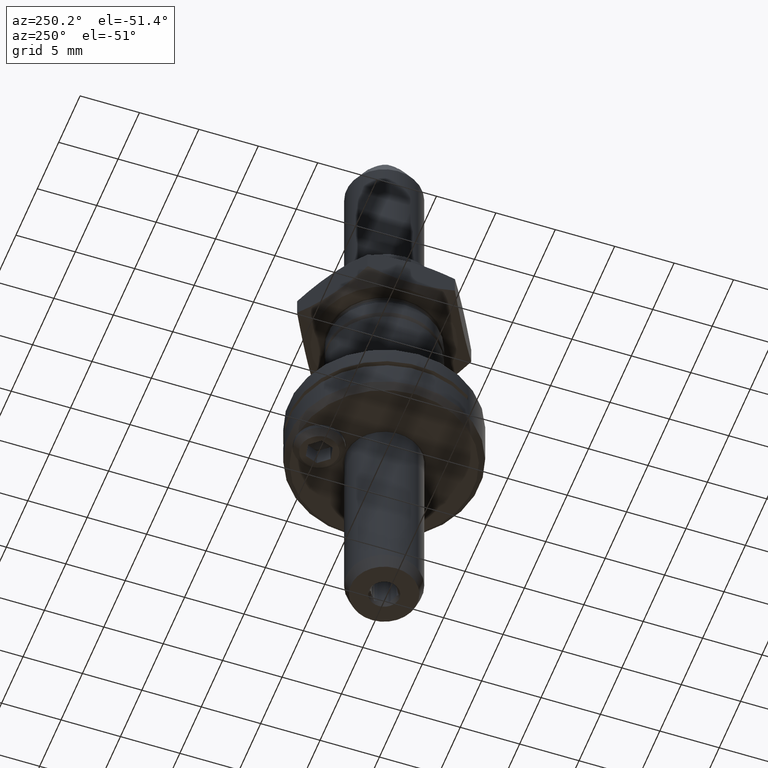
[diagram: clean part render]
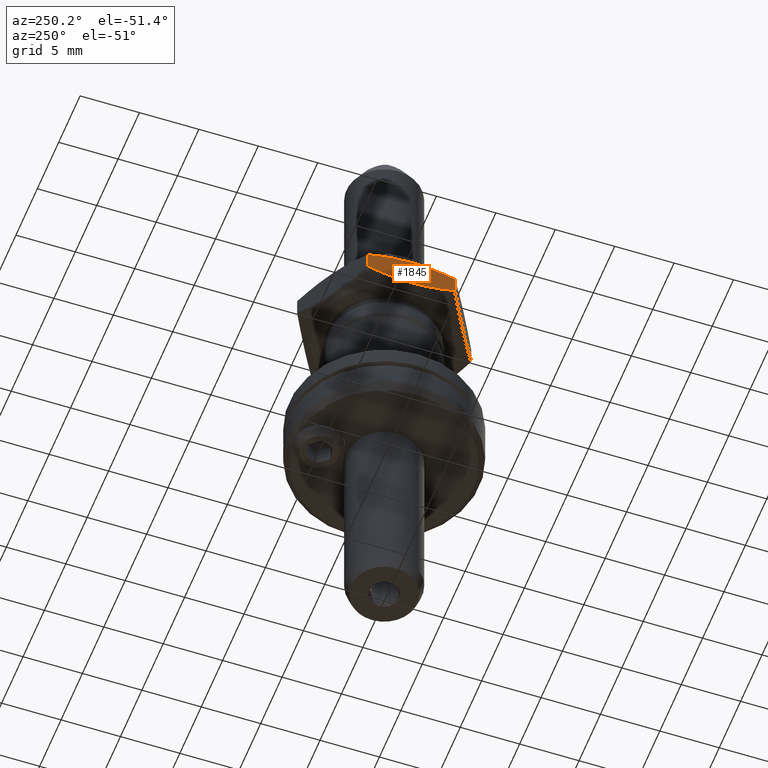
[diagram: same view with one face highlighted and labeled with its STEP entity id]
A machine part, auxiliary view. The second image highlights one B-rep face of the part: STEP entity #1845.
In plain terms, the highlighted planar face has unit normal (1, 0, 0).
Its self-contained STEP definition (entity closure, byte-faithful):
#27 = CARTESIAN_POINT ( 'NONE',  ( -6.350000000006223999, -3.666174209357553782, -19.27545306067893804 ) ) ;
#52 = ORIENTED_EDGE ( 'NONE', *, *, #1779, .F. ) ;
#82 = CARTESIAN_POINT ( 'NONE',  ( -6.349999999999999645, -3.666174209353959768, -18.41499999999999559 ) ) ;
#129 = CARTESIAN_POINT ( 'NONE',  ( -6.349999999999999645, 3.666174209353959768, -18.41499999999999559 ) ) ;
#147 = VERTEX_POINT ( 'NONE', #1875 ) ;
#197 = FACE_OUTER_BOUND ( 'NONE', #1256, .T. ) ;
#224 = CARTESIAN_POINT ( 'NONE',  ( -6.350000000000000533, -1.251304665882936984, -21.29670606329582938 ) ) ;
#379 = CARTESIAN_POINT ( 'NONE',  ( -6.350000000006223999, -3.666174209357553782, -19.27545306067893804 ) ) ;
#429 = ORIENTED_EDGE ( 'NONE', *, *, #2055, .F. ) ;
#458 = VERTEX_POINT ( 'NONE', #1405 ) ;
#582 = CARTESIAN_POINT ( 'NONE',  ( -6.349999999999997868, 1.251304665882936096, -21.29670606329582228 ) ) ;
#595 = CARTESIAN_POINT ( 'NONE',  ( -6.350000000000000533, 2.468361593792634423, -21.07532565048514428 ) ) ;
#784 = CARTESIAN_POINT ( 'NONE',  ( -6.350000000000000533, -2.468361682194938567, -18.92967436818691240 ) ) ;
#882 = ORIENTED_EDGE ( 'NONE', *, *, #1445, .F. ) ;
#901 = VECTOR ( 'NONE', #1684, 1000.000000000000000 ) ;
#902 = AXIS2_PLACEMENT_3D ( 'NONE', #1756, #1563, #1587 ) ;
#919 = ORIENTED_EDGE ( 'NONE', *, *, #2188, .F. ) ;
#966 = CARTESIAN_POINT ( 'NONE',  ( -6.349999999999997868, -1.251304677058781678, -18.70829393671201046 ) ) ;
#1143 = CARTESIAN_POINT ( 'NONE',  ( -6.349999999999999645, -3.666174242668599259, -20.72954692971594426 ) ) ;
#1180 = CARTESIAN_POINT ( 'NONE',  ( -6.349999999999999645, -2.468361761013272648, -21.07532561378029001 ) ) ;
#1256 = EDGE_LOOP ( 'NONE', ( #52, #429, #919, #882 ) ) ;
#1341 = B_SPLINE_CURVE_WITH_KNOTS ( 'NONE', 3,
 ( #2160, #1942, #1741, #966, #784, #27 ),
 .UNSPECIFIED., .F., .F.,
 ( 4, 2, 4 ),
 ( -0.003709784738392341019, 3.280362093072142216E-15, 0.003709784738398901743 ),
 .UNSPECIFIED. ) ;
#1405 = CARTESIAN_POINT ( 'NONE',  ( -6.350000000006169820, 3.666174209350233859, -19.27545306067679931 ) ) ;
#1445 = EDGE_CURVE ( 'NONE', #2218, #147, #1810, .T. ) ;
#1563 = DIRECTION ( 'NONE',  ( 1.000000000000000000, 0.000000000000000000, 0.000000000000000000 ) ) ;
#1587 = DIRECTION ( 'NONE',  ( 0.000000000000000000, 0.000000000000000000, -1.000000000000000000 ) ) ;
#1594 = VECTOR ( 'NONE', #1651, 1000.000000000000000 ) ;
#1651 = DIRECTION ( 'NONE',  ( 0.000000000000000000, 0.000000000000000000, -1.000000000000000000 ) ) ;
#1672 = LINE ( 'NONE', #129, #901 ) ;
#1682 = VERTEX_POINT ( 'NONE', #1686 ) ;
#1684 = DIRECTION ( 'NONE',  ( -0.000000000000000000, -0.000000000000000000, 1.000000000000000000 ) ) ;
#1686 = CARTESIAN_POINT ( 'NONE',  ( -6.350000028870137037, 3.666174192685615285, -20.72954692970971990 ) ) ;
#1737 = B_SPLINE_CURVE_WITH_KNOTS ( 'NONE', 3,
 ( #1143, #1180, #224, #582, #595, #1929 ),
 .UNSPECIFIED., .F., .F.,
 ( 4, 2, 4 ),
 ( 3.439329007512279472E-11, 0.003709784738291050082, 0.007419569442188810732 ),
 .UNSPECIFIED. ) ;
#1741 = CARTESIAN_POINT ( 'NONE',  ( -6.350000000000000533, 1.251304677058781012, -18.70829393671201757 ) ) ;
#1756 = CARTESIAN_POINT ( 'NONE',  ( -6.349999999999999645, 3.666174209353959768, -18.41499999999999559 ) ) ;
#1779 = EDGE_CURVE ( 'NONE', #458, #2218, #1341, .T. ) ;
#1781 = PLANE ( 'NONE',  #902 ) ;
#1810 = LINE ( 'NONE', #82, #1594 ) ;
#1845 = ADVANCED_FACE ( 'NONE', ( #197 ), #1781, .F. ) ;
#1875 = CARTESIAN_POINT ( 'NONE',  ( -6.349999999999999645, -3.666174242668599259, -20.72954692971594426 ) ) ;
#1929 = CARTESIAN_POINT ( 'NONE',  ( -6.350000028870137037, 3.666174192685615285, -20.72954692970971990 ) ) ;
#1942 = CARTESIAN_POINT ( 'NONE',  ( -6.349999999989993427, 2.468361682195491458, -18.92967436819322202 ) ) ;
#2055 = EDGE_CURVE ( 'NONE', #1682, #458, #1672, .T. ) ;
#2160 = CARTESIAN_POINT ( 'NONE',  ( -6.350000000006169820, 3.666174209350233859, -19.27545306067679931 ) ) ;
#2188 = EDGE_CURVE ( 'NONE', #147, #1682, #1737, .T. ) ;
#2218 = VERTEX_POINT ( 'NONE', #379 ) ;